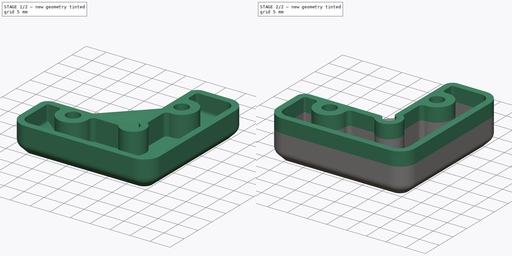
[diagram: build sequence overview — one tinted view per stage of 2, left to right]
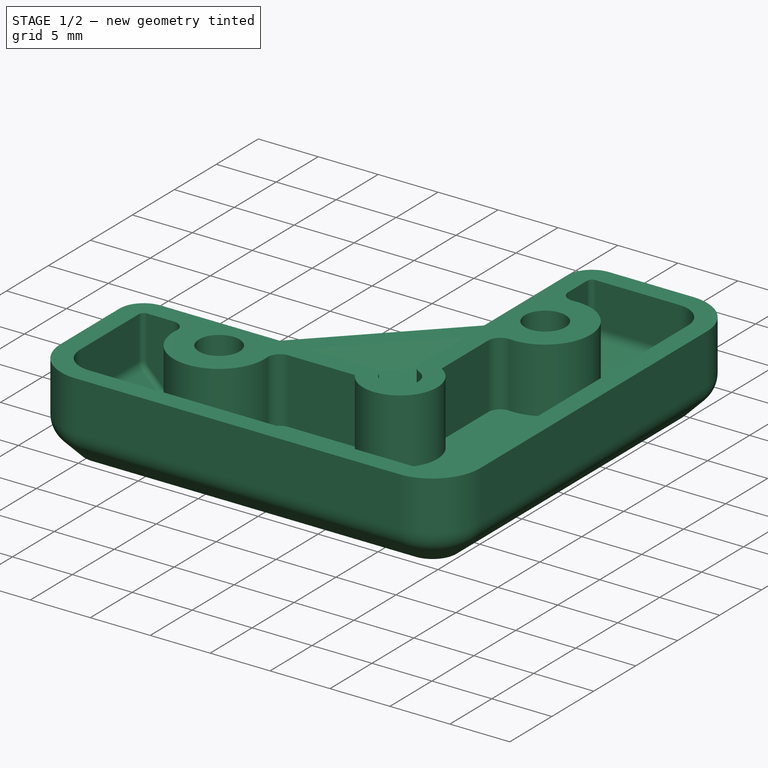
[diagram: stage 1 of 2 — iso view after this stage's code; geometry added in this stage tinted green]
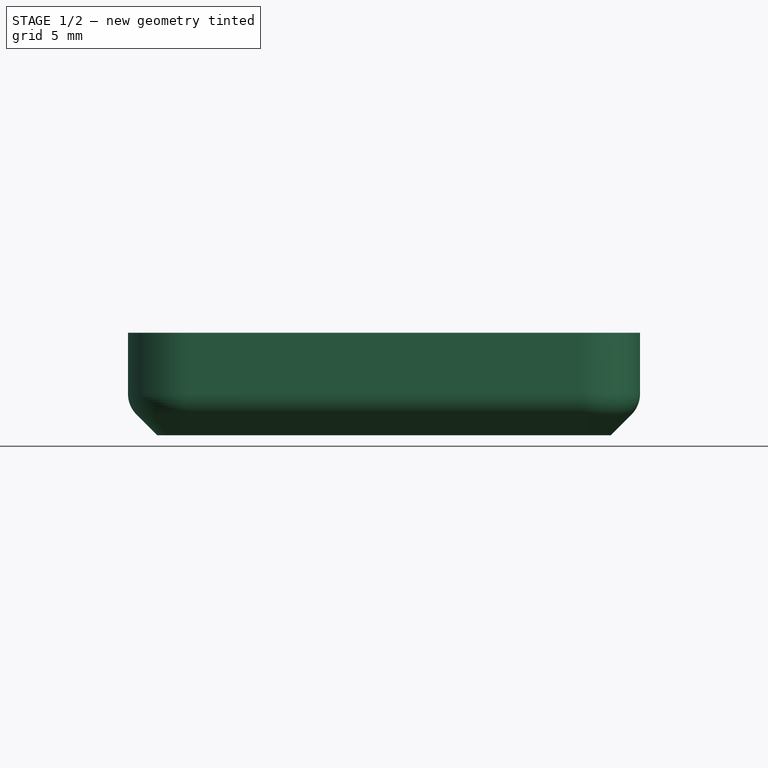
[diagram: stage 1 of 2 — front view after this stage's code; geometry added in this stage tinted green]
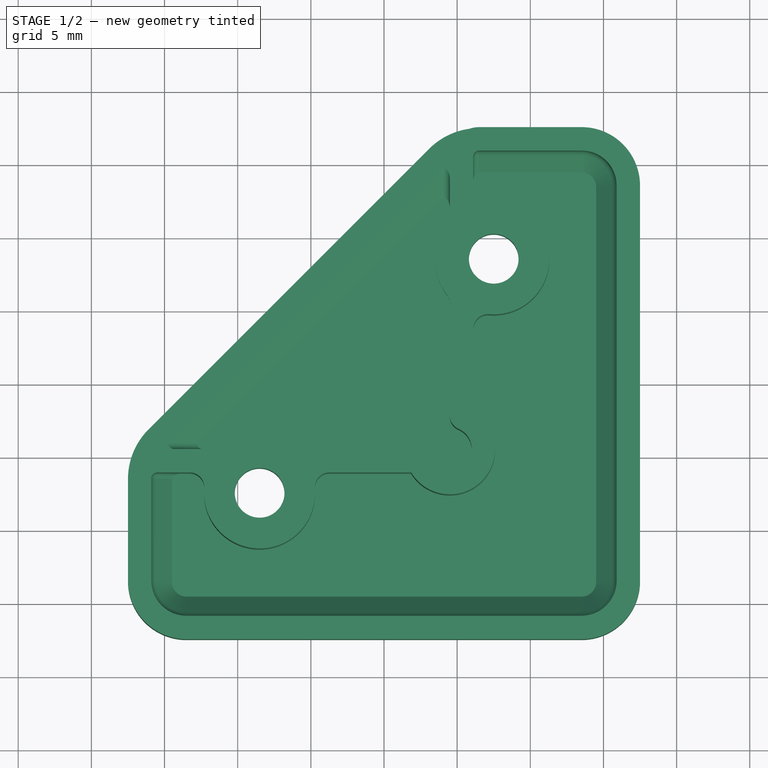
[diagram: stage 1 of 2 — top view after this stage's code; geometry added in this stage tinted green]
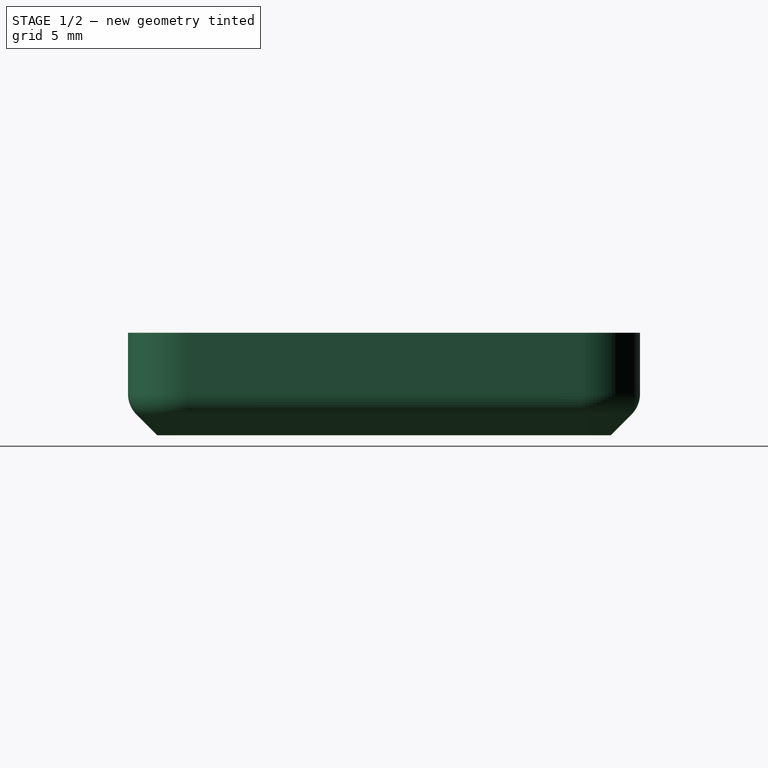
[diagram: stage 1 of 2 — right view after this stage's code; geometry added in this stage tinted green]
FCSTD DOCUMENT  (FreeCAD 1.0R39109 (Git))
Label: Corner_7p5
License: All rights reserved
LicenseURL: https://en.wikipedia.org/wiki/All_rights_reserved
objects: Part::Feature×1, Part::Refine×1, PartDesign::FeatureBase×1, Sketcher::SketchObject×1, PartDesign::Pad×1, PartDesign::Body×1
note: 10 computed .brp shape members not serialized (recipe doc carries the construction recipe); baked Part::Feature solids carry a one-line shape summary decoded from their .brp

FEATURE [Part::Feature] corner_panel_clip_4mm_x009_solid  label="corner_panel_clip_4mm_x009 (Solid)"
  shape: bbox 35 x 35 x 7 mm, 6994 faces (baked)
FEATURE [Part::Refine] corner_panel_clip_4mm_x009_solid001  label="corner_panel_clip_4mm_x009 (Solid)001"
  Source = -> corner_panel_clip_4mm_x009_solid
FEATURE [PartDesign::FeatureBase] BaseFeature
  BaseFeature = -> corner_panel_clip_4mm_x009_solid001
  Suppressed = false
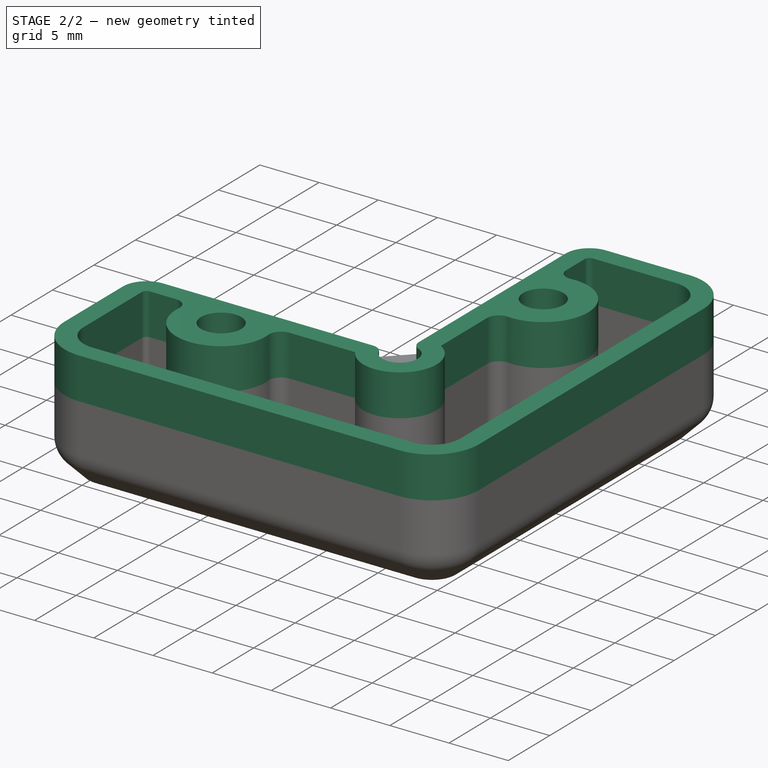
[diagram: stage 2 of 2 — iso view after this stage's code; geometry added in this stage tinted green]
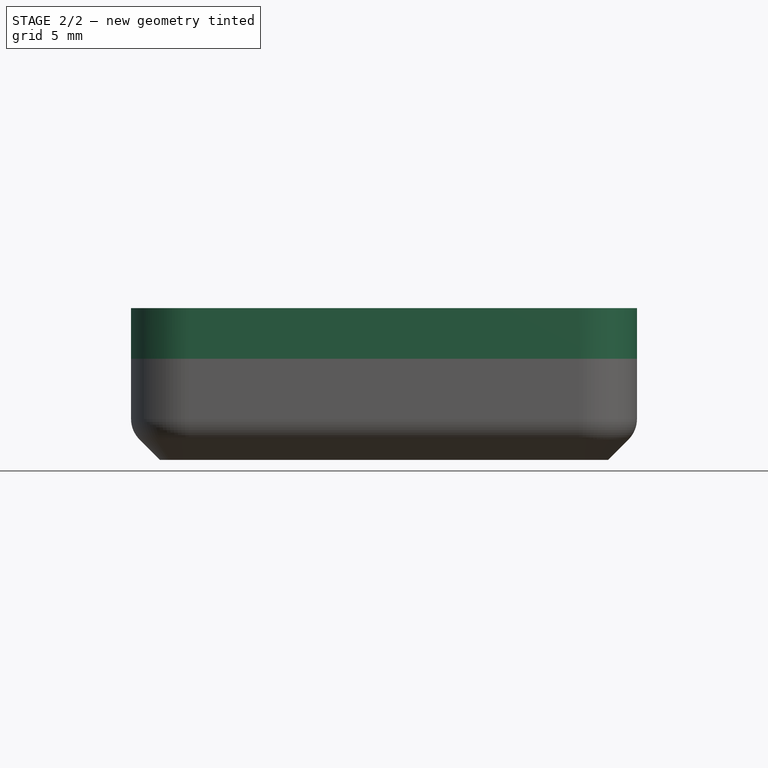
[diagram: stage 2 of 2 — front view after this stage's code; geometry added in this stage tinted green]
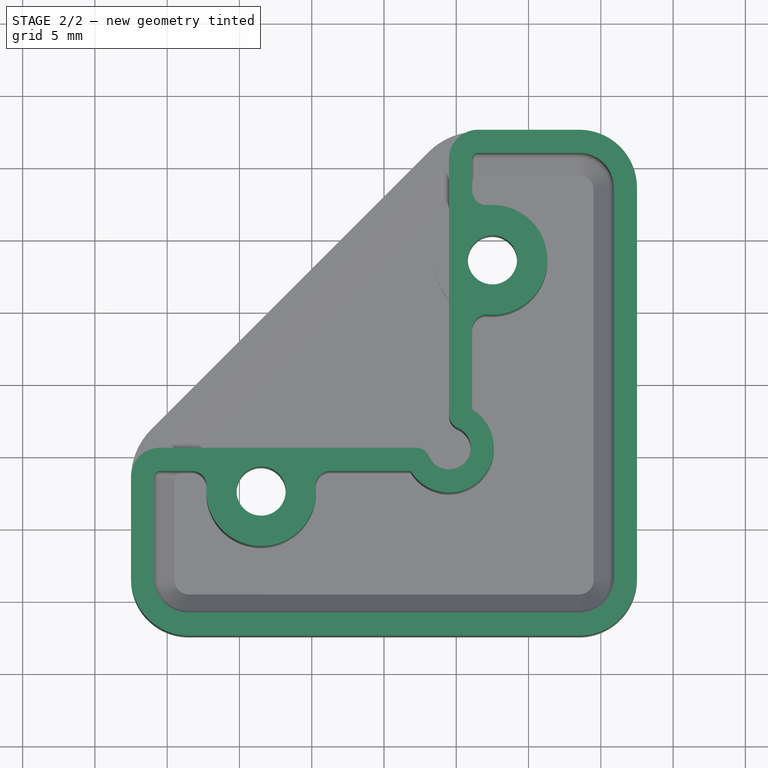
[diagram: stage 2 of 2 — top view after this stage's code; geometry added in this stage tinted green]
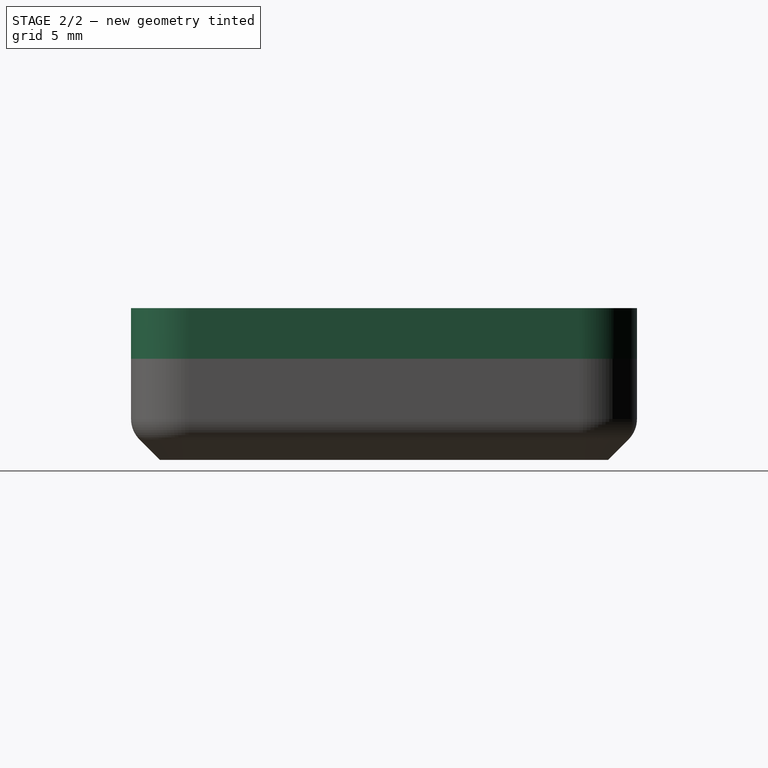
[diagram: stage 2 of 2 — right view after this stage's code; geometry added in this stage tinted green]
FEATURE [Sketcher::SketchObject] Sketch
  ArcFitTolerance = 1e-06
  AttachmentSupport = -> [BaseFeature]
  FullyConstrained = true
  MakeInternals = false
  MapMode = 5
  Placement = pos=(0,0,7) rot=(0,0,1;0rad)
  sketch-geometry (36):
    g0: ArcOfCircle CenterX=131.5 CenterY=135.5 CenterZ=0 NormalX=0 NormalY=0 NormalZ=1 AngleXU=0 Radius=2 StartAngle=1.5708 EndAngle=3.14159
    g1: ArcOfCircle CenterX=138.5 CenterY=133.5 CenterZ=0 NormalX=0 NormalY=0 NormalZ=1 AngleXU=0 Radius=4 StartAngle=0 EndAngle=1.5708
    g2: ArcOfCircle CenterX=138.5 CenterY=106.5 CenterZ=0 NormalX=0 NormalY=0 NormalZ=1 AngleXU=0 Radius=4 StartAngle=4.71239 EndAngle=6.28319
    g3: ArcOfCircle CenterX=111.5 CenterY=106.5 CenterZ=0 NormalX=0 NormalY=0 NormalZ=1 AngleXU=0 Radius=4 StartAngle=3.14159 EndAngle=4.71239
    g4: ArcOfCircle CenterX=109.5 CenterY=113.5 CenterZ=0 NormalX=0 NormalY=0 NormalZ=1 AngleXU=0 Radius=2 StartAngle=1.5708 EndAngle=3.14159
    g5: ArcOfCircle CenterX=127.209 CenterY=114.5 CenterZ=0 NormalX=0 NormalY=0 NormalZ=1 AngleXU=0 Radius=1 StartAngle=0.411517 EndAngle=1.5708
    g6: ArcOfCircle CenterX=129.5 CenterY=115.5 CenterZ=0 NormalX=0 NormalY=0 NormalZ=1 AngleXU=0 Radius=1.5 StartAngle=3.55311 EndAngle=7.44246
    g7: ArcOfCircle CenterX=130.5 CenterY=117.791 CenterZ=0 NormalX=0 NormalY=0 NormalZ=1 AngleXU=0 Radius=1 StartAngle=3.14159 EndAngle=4.30087
    g8: LineSegment StartX=131.5 StartY=137.5 StartZ=0 EndX=138.5 EndY=137.5 EndZ=0
    g9: LineSegment StartX=142.5 StartY=133.5 StartZ=0 EndX=142.5 EndY=106.5 EndZ=0
    g10: LineSegment StartX=138.5 StartY=102.5 StartZ=0 EndX=111.5 EndY=102.5 EndZ=0
    g11: LineSegment StartX=107.5 StartY=106.5 StartZ=0 EndX=107.5 EndY=113.5 EndZ=0
    g12: LineSegment StartX=109.5 StartY=115.5 StartZ=0 EndX=127.209 EndY=115.5 EndZ=0
    g13: LineSegment StartX=129.5 StartY=117.791 StartZ=0 EndX=129.5 EndY=135.5 EndZ=0
    g14: ArcOfCircle CenterX=111.5 CenterY=106.5 CenterZ=0 NormalX=0 NormalY=0 NormalZ=1 AngleXU=0 Radius=2.4 StartAngle=3.14159 EndAngle=4.71239
    g15: ArcOfCircle CenterX=109.5 CenterY=113.5 CenterZ=0 NormalX=0 NormalY=0 NormalZ=1 AngleXU=0 Radius=0.4 StartAngle=1.5708 EndAngle=3.14159
    g16: LineSegment StartX=109.1 StartY=113.5 StartZ=0 EndX=109.1 EndY=106.5 EndZ=0
    g17: LineSegment StartX=109.5 StartY=113.9 StartZ=0 EndX=111.717 EndY=113.9 EndZ=0
    g18: ArcOfCircle CenterX=111.717 CenterY=112.9 CenterZ=0 NormalX=0 NormalY=0 NormalZ=1 AngleXU=0 Radius=1 StartAngle=6.19976 EndAngle=7.85398
    g19: ArcOfCircle CenterX=116.5 CenterY=112.5 CenterZ=0 NormalX=0 NormalY=0 NormalZ=1 AngleXU=0 Radius=3.8 StartAngle=3.05816 EndAngle=6.36662
    g20: ArcOfCircle CenterX=121.283 CenterY=112.9 CenterZ=0 NormalX=0 NormalY=0 NormalZ=1 AngleXU=0 Radius=1 StartAngle=1.5708 EndAngle=3.22502
    g21: LineSegment StartX=121.283 StartY=113.9 StartZ=0 EndX=126.845 EndY=113.9 EndZ=0
    g22: ArcOfCircle CenterX=129.5 CenterY=115.5 CenterZ=0 NormalX=0 NormalY=0 NormalZ=1 AngleXU=0 Radius=3.1 StartAngle=3.68392 EndAngle=7.31166
    g23: LineSegment StartX=131.1 StartY=118.155 StartZ=0 EndX=131.1 EndY=123.717 EndZ=0
    g24: ArcOfCircle CenterX=132.1 CenterY=123.717 CenterZ=0 NormalX=0 NormalY=0 NormalZ=1 AngleXU=0 Radius=1 StartAngle=1.48737 EndAngle=3.14159
    g25: ArcOfCircle CenterX=132.5 CenterY=128.5 CenterZ=0 NormalX=0 NormalY=0 NormalZ=1 AngleXU=0 Radius=3.8 StartAngle=4.62896 EndAngle=7.93741
    g26: ArcOfCircle CenterX=132.1 CenterY=133.283 CenterZ=0 NormalX=0 NormalY=0 NormalZ=1 AngleXU=0 Radius=1 StartAngle=3.14159 EndAngle=4.79582
    g27: LineSegment StartX=131.1 StartY=133.283 StartZ=0 EndX=131.1 EndY=135.5 EndZ=0
    g28: ArcOfCircle CenterX=131.5 CenterY=135.5 CenterZ=0 NormalX=0 NormalY=0 NormalZ=1 AngleXU=0 Radius=0.4 StartAngle=1.5708 EndAngle=3.14159
    g29: LineSegment StartX=131.5 StartY=135.9 StartZ=0 EndX=138.5 EndY=135.9 EndZ=0
    g30: ArcOfCircle CenterX=138.5 CenterY=133.5 CenterZ=0 NormalX=0 NormalY=0 NormalZ=1 AngleXU=0 Radius=2.4 StartAngle=-3.6e-15 EndAngle=1.5708
    g31: LineSegment StartX=140.9 StartY=133.5 StartZ=0 EndX=140.9 EndY=106.5 EndZ=0
    g32: ArcOfCircle CenterX=138.5 CenterY=106.5 CenterZ=0 NormalX=0 NormalY=0 NormalZ=1 AngleXU=0 Radius=2.4 StartAngle=4.71239 EndAngle=6.28319
    g33: LineSegment StartX=138.5 StartY=104.1 StartZ=0 EndX=111.5 EndY=104.1 EndZ=0
    g34: Circle CenterX=116.5 CenterY=112.5 CenterZ=0 NormalX=0 NormalY=0 NormalZ=1 AngleXU=0 Radius=1.7
    g35: Circle CenterX=132.5 CenterY=128.5 CenterZ=0 NormalX=0 NormalY=0 NormalZ=1 AngleXU=0 Radius=1.7
  constraints (89):
    c: Horizontal(g8)
    c: Vertical(g9)
    c: Horizontal(g10)
    c: Vertical(g11)
    c: Horizontal(g12)
    c: Vertical(g13)
    c: Tangent(g8,g0) = 1.5708
    c: Tangent(g8,g1) = 1.5708
    c: Tangent(g9,g1) = 1.5708
    c: Tangent(g9,g2) = 1.5708
    c: Tangent(g10,g2) = 1.5708
    c: Tangent(g10,g3) = 1.5708
    c: Tangent(g11,g3) = 1.5708
    c: Tangent(g11,g4) = 1.5708
    c: Tangent(g12,g4) = 1.5708
    c: Tangent(g12,g5) = 1.5708
    c: Tangent(g6,g5) = 1.5708
    c: Tangent(g7,g6) = 1.5708
    c: Tangent(g13,g7) = 1.5708
    c: Tangent(g13,g0) = 1.5708
    c: DistanceY(g2,g1) = 35
    c: DistanceX(g3,g2) = 35
    c: Radius(g2) = 4
    c: Equal(g2,g1)
    c: Equal(g1,g3)
    c: Radius(g4) = 2
    c: Equal(g4,g0)
    c: Radius(g6) = 1.5
    c: Radius(g7) = 1
    c: Equal(g7,g5)
    c: DistanceY(g3,g4) = 13
    c: DistanceX(g0,g1) = 13
    c: Distance(g3,g-2) = 107.5
    c: Distance(g3,g-1) = 102.5
    c: DistanceX(g4,g6) = 22
    c: DistanceY(g2,g6) = 13
    c: Coincident(g14,g3)
    c: Coincident(g15,g4)
    c: Vertical(g16)
    c: Tangent(g16,g14) = -1.5708
    c: Tangent(g16,g15) = -1.5708
    c: Horizontal(g17)
    c: Tangent(g17,g15) = 1.5708
    c: Tangent(g18,g17) = 1.5708
    c: Radius(g18) = 1
    c: Equal(g18,g20)
    c: Radius(g19) = 3.8
    c: Tangent(g19,g18) = 1.5708
    c: Tangent(g20,g19) = 1.5708
    c: Horizontal(g21)
    c: Tangent(g21,g20) = 1.5708
    c: Coincident(g22,g6)
    c: Coincident(g22,g21)
    c: Radius(g22) = 3.1
    c: DistanceY(g14,g15) = 9.8
    c: DistanceY(g3,g14) = 1.6
    c: DistanceX(g4,g19) = 9
    c: DistanceY(g19,g4) = 3
    c: Horizontal(g20,g17)
    c: Coincident(g23,g22)
    c: Vertical(g23)
    c: Equal(g19,g25)
    c: Equal(g18,g24)
    c: Equal(g24,g26)
    c: Coincident(g28,g0)
    c: Equal(g15,g28)
    c: Tangent(g24,g23) = 1.5708
    c: Tangent(g25,g24) = 1.5708
    c: Tangent(g26,g25) = 1.5708
    c: Tangent(g27,g26) = 1.5708
    c: Vertical(g27)
    c: Tangent(g28,g27) = 1.5708
    c: Horizontal(g29)
    c: Tangent(g29,g28) = 1.5708
    c: DistanceX(g19,g25) = 16
    c: DistanceY(g19,g25) = 16
    c: Vertical(g26,g23)
    c: Coincident(g30,g1)
    c: Tangent(g30,g29) = 1.5708
    c: Vertical(g31)
    c: Tangent(g31,g30) = 1.5708
    c: Coincident(g32,g2)
    c: Tangent(g32,g31) = 1.5708
    c: Coincident(g33,g14)
    c: Tangent(g33,g32) = 1.5708
    c: Coincident(g34,g19)
    c: Diameter(g34) = 3.4
    c: Coincident(g35,g25)
    c: Equal(g34,g35)
FEATURE [PartDesign::Pad] Pad
  BaseFeature = -> BaseFeature
  Direction = (0,0,1)
  Length = 3.5
  Length2 = 10
  Profile = -> Sketch
  ReferenceAxis = -> Sketch [N_Axis]
  Refine = true
  Suppressed = false
  Type = 0
FEATURE [PartDesign::Body] Body
  AllowCompound = false
  BaseFeature = -> corner_panel_clip_4mm_x009_solid001
  Group = -> [BaseFeature,Sketch,Pad]
  Origin = -> Origin
  Tip = -> Pad
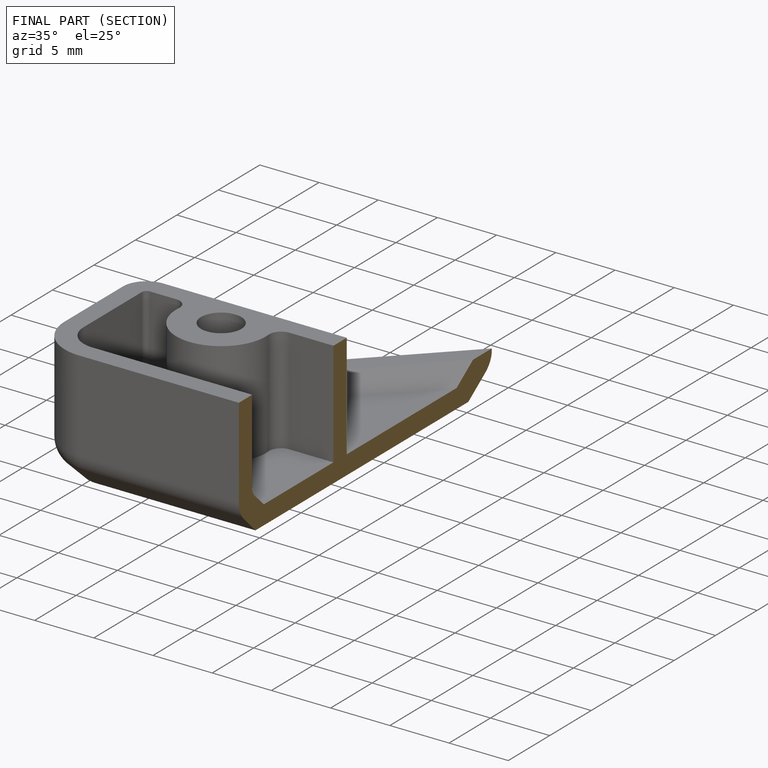
[diagram: finished part — half-section view (interior)]
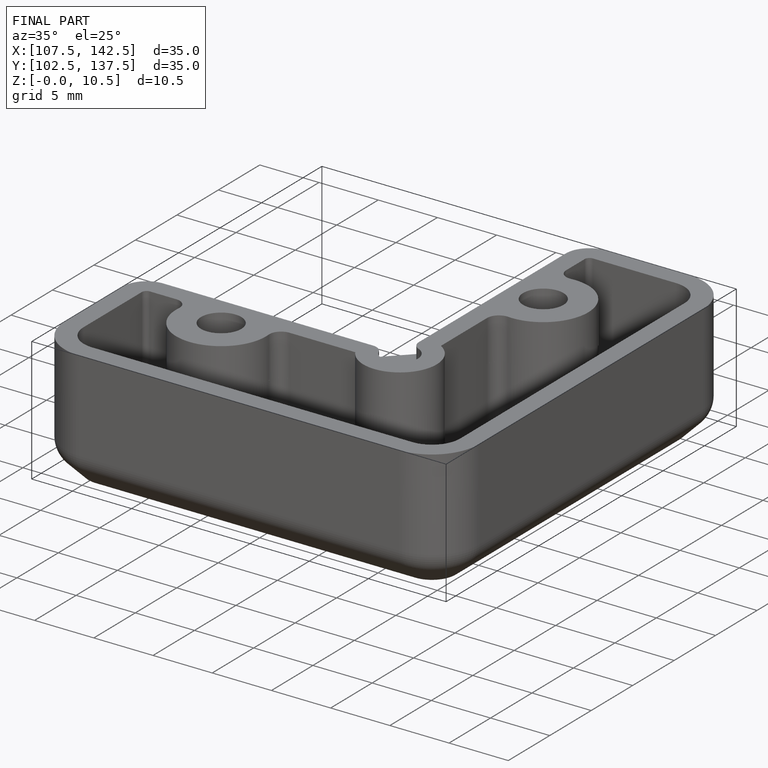
[diagram: finished part — iso view with bounding-box wireframe]
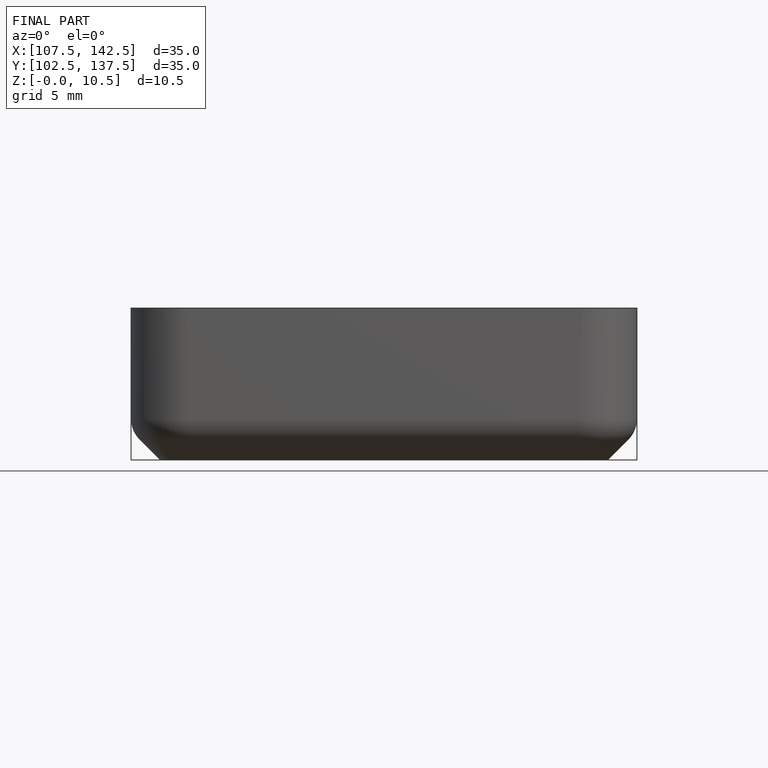
[diagram: finished part — front view with bounding-box wireframe]
